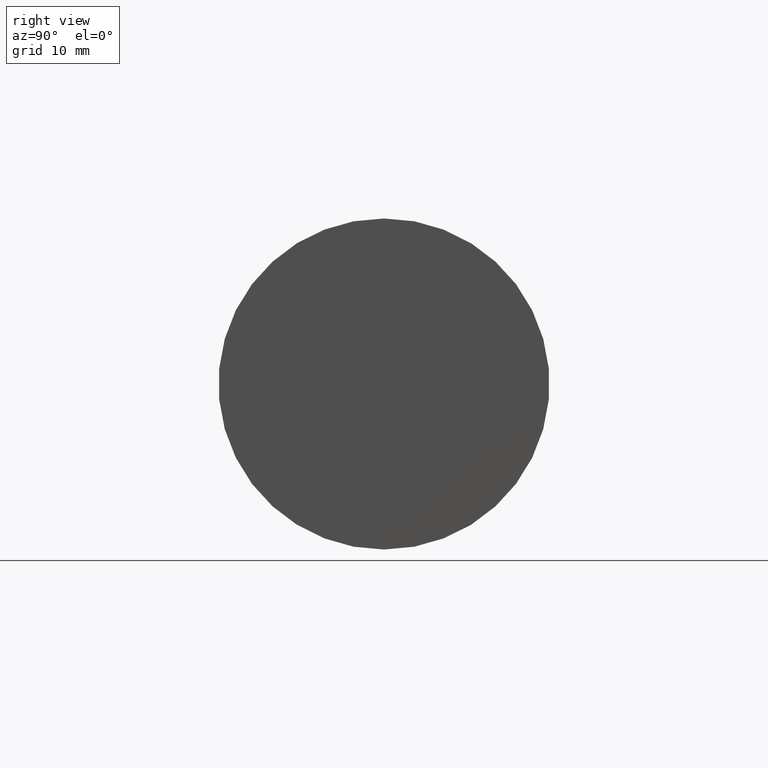
[diagram: clean part render]
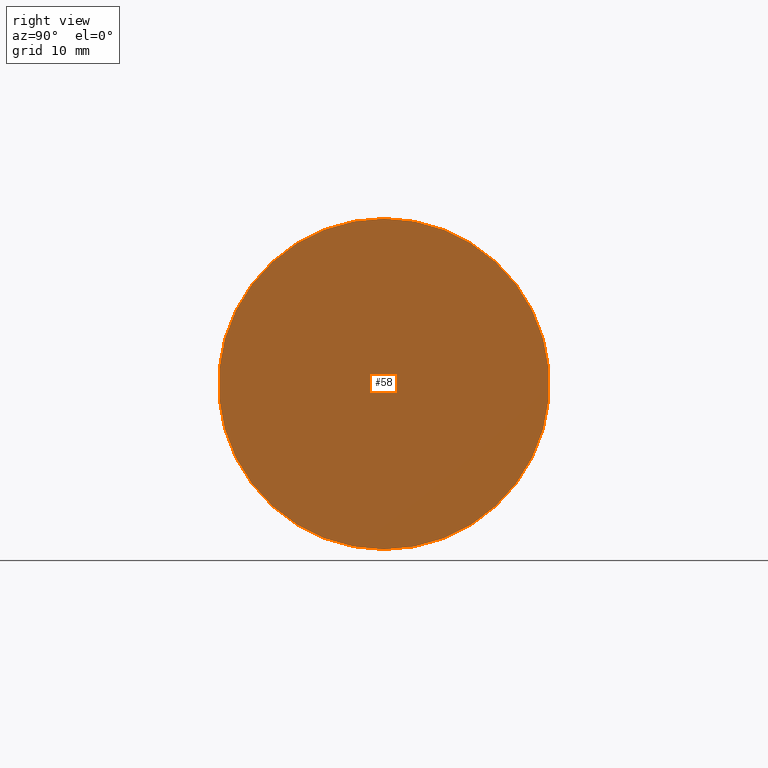
[diagram: same view with one face highlighted and labeled with its STEP entity id]
A machine part, right view. The second image highlights one B-rep face of the part: STEP entity #58.
In plain terms, the highlighted planar face has unit normal (1, 0, 0).
Its self-contained STEP definition (entity closure, byte-faithful):
#2 = FACE_OUTER_BOUND ( 'NONE', #256, .T. ) ;
#25 = CARTESIAN_POINT ( 'NONE',  ( 54.99999994390000069, 24.99999997449999967, 0.000000000000000000 ) ) ;
#58 = ADVANCED_FACE ( 'NONE', ( #2 ), #355, .T. ) ;
#71 = VERTEX_POINT ( 'NONE', #108 ) ;
#103 = AXIS2_PLACEMENT_3D ( 'NONE', #143, #233, #179 ) ;
#108 = CARTESIAN_POINT ( 'NONE',  ( 54.99999994390000069, 0.000000000000000000, -24.99999997449999967 ) ) ;
#118 = VERTEX_POINT ( 'NONE', #277 ) ;
#131 = DIRECTION ( 'NONE',  ( 0.000000000000000000, 1.000000000000000000, 0.000000000000000000 ) ) ;
#143 = CARTESIAN_POINT ( 'NONE',  ( 54.99999994390000069, 0.000000000000000000, 0.000000000000000000 ) ) ;
#162 = CIRCLE ( 'NONE', #103, 24.99999997449999967 ) ;
#179 = DIRECTION ( 'NONE',  ( 0.000000000000000000, 0.000000000000000000, -1.000000000000000000 ) ) ;
#191 = AXIS2_PLACEMENT_3D ( 'NONE', #25, #300, #131 ) ;
#198 = AXIS2_PLACEMENT_3D ( 'NONE', #353, #351, #230 ) ;
#230 = DIRECTION ( 'NONE',  ( 0.000000000000000000, 0.000000000000000000, -1.000000000000000000 ) ) ;
#233 = DIRECTION ( 'NONE',  ( 1.000000000000000000, 0.000000000000000000, 0.000000000000000000 ) ) ;
#256 = EDGE_LOOP ( 'NONE', ( #296, #342 ) ) ;
#276 = EDGE_CURVE ( 'NONE', #71, #118, #162, .T. ) ;
#277 = CARTESIAN_POINT ( 'NONE',  ( 54.99999994390000069, 3.061616994745535943E-15, 24.99999997449999967 ) ) ;
#296 = ORIENTED_EDGE ( 'NONE', *, *, #276, .T. ) ;
#300 = DIRECTION ( 'NONE',  ( 1.000000000000000000, 0.000000000000000000, 0.000000000000000000 ) ) ;
#303 = CIRCLE ( 'NONE', #198, 24.99999997449999967 ) ;
#328 = EDGE_CURVE ( 'NONE', #118, #71, #303, .T. ) ;
#342 = ORIENTED_EDGE ( 'NONE', *, *, #328, .T. ) ;
#351 = DIRECTION ( 'NONE',  ( 1.000000000000000000, 0.000000000000000000, 0.000000000000000000 ) ) ;
#353 = CARTESIAN_POINT ( 'NONE',  ( 54.99999994390000069, 0.000000000000000000, 0.000000000000000000 ) ) ;
#355 = PLANE ( 'NONE',  #191 ) ;